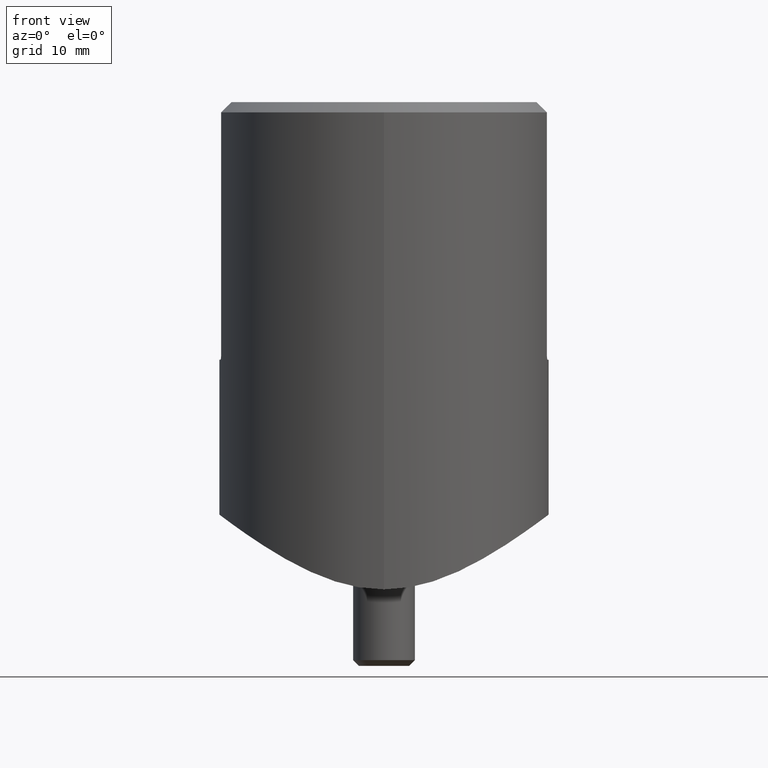
[diagram: clean part render]
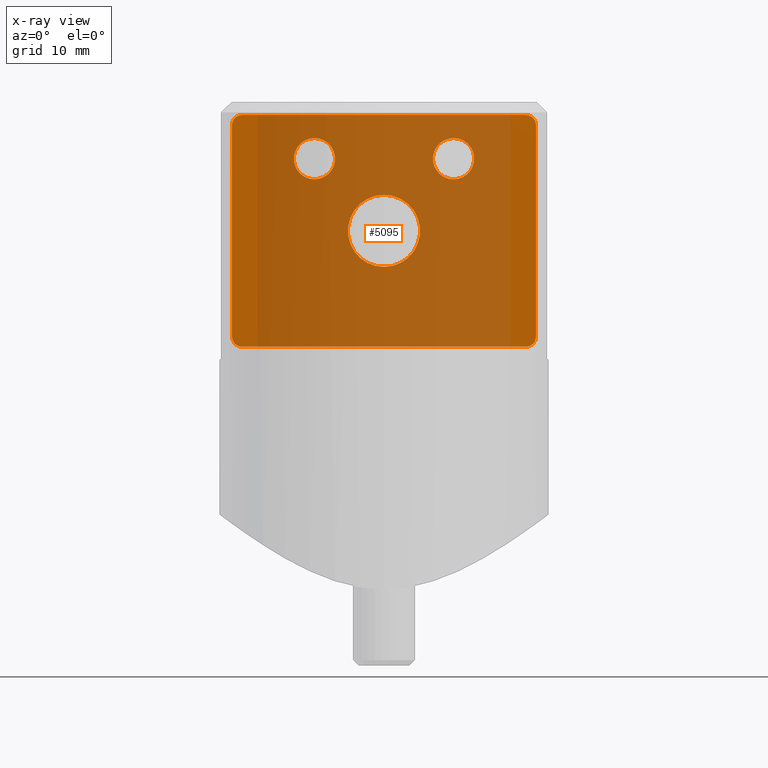
[diagram: x-ray — body ghosted, one internal face saturated and labeled with its STEP entity id]
A machine part, front view, then the same camera in x-ray: the body is ghosted and one INTERNAL B-rep face — a face not visible from any outside direction — is saturated and labeled: STEP entity #5095.
In plain terms, the highlighted planar face has unit normal (0, 1, 0).
Its self-contained STEP definition (entity closure, byte-faithful):
#307 = AXIS2_PLACEMENT_3D ( 'NONE', #15030, #10903, #17843 ) ;
#454 = ORIENTED_EDGE ( 'NONE', *, *, #17945, .T. ) ;
#544 = EDGE_CURVE ( 'NONE', #16011, #16011, #11979, .T. ) ;
#647 = CARTESIAN_POINT ( 'NONE',  ( -14.75000000000000355, 1.000000000000000000, -11.24999999999999112 ) ) ;
#700 = LINE ( 'NONE', #13476, #10276 ) ;
#702 = CARTESIAN_POINT ( 'NONE',  ( -14.75000000000000000, 1.000000000000000000, 10.24999999999999822 ) ) ;
#909 = DIRECTION ( 'NONE',  ( 0.000000000000000000, 0.000000000000000000, -1.000000000000000000 ) ) ;
#919 = CIRCLE ( 'NONE', #10800, 1.000000000000000888 ) ;
#971 = CIRCLE ( 'NONE', #16601, 0.9999999999999991118 ) ;
#1204 = ORIENTED_EDGE ( 'NONE', *, *, #3835, .T. ) ;
#1389 = CIRCLE ( 'NONE', #9608, 2.000000000000000000 ) ;
#1562 = EDGE_CURVE ( 'NONE', #3215, #16332, #9225, .T. ) ;
#1596 = CARTESIAN_POINT ( 'NONE',  ( -13.75000000000000178, 1.000000000000000000, -10.24999999999999289 ) ) ;
#1599 = CARTESIAN_POINT ( 'NONE',  ( -13.74999999999999822, 1.000000000000000000, 11.24999999999999822 ) ) ;
#1671 = CARTESIAN_POINT ( 'NONE',  ( 6.750000000000002665, 1.000000000000000000, 6.999999999999995559 ) ) ;
#2731 = AXIS2_PLACEMENT_3D ( 'NONE', #2752, #10992, #5422 ) ;
#2752 = CARTESIAN_POINT ( 'NONE',  ( 0.000000000000000000, 1.000000000000000000, 0.000000000000000000 ) ) ;
#2813 = ORIENTED_EDGE ( 'NONE', *, *, #6940, .T. ) ;
#3215 = VERTEX_POINT ( 'NONE', #13511 ) ;
#3297 = CIRCLE ( 'NONE', #2731, 3.499999999999999556 ) ;
#3340 = LINE ( 'NONE', #6179, #10314 ) ;
#3449 = ORIENTED_EDGE ( 'NONE', *, *, #544, .F. ) ;
#3835 = EDGE_CURVE ( 'NONE', #8982, #3215, #971, .T. ) ;
#3906 = EDGE_LOOP ( 'NONE', ( #16092 ) ) ;
#4087 = EDGE_LOOP ( 'NONE', ( #454, #1204, #6555, #11449, #2813, #14783, #6357, #7365 ) ) ;
#4187 = FACE_BOUND ( 'NONE', #14386, .T. ) ;
#4669 = VECTOR ( 'NONE', #6291, 1000.000000000000000 ) ;
#4782 = EDGE_LOOP ( 'NONE', ( #14961 ) ) ;
#4829 = EDGE_CURVE ( 'NONE', #9028, #9028, #1389, .T. ) ;
#5085 = DIRECTION ( 'NONE',  ( -0.000000000000000000, 1.000000000000000000, 0.000000000000000000 ) ) ;
#5095 = ADVANCED_FACE ( 'NONE', ( #14450, #7916, #4187, #6598 ), #13588, .F. ) ;
#5106 = LINE ( 'NONE', #647, #4669 ) ;
#5326 = DIRECTION ( 'NONE',  ( -0.000000000000000000, 1.000000000000000000, 0.000000000000000000 ) ) ;
#5336 = EDGE_CURVE ( 'NONE', #16332, #9102, #13348, .T. ) ;
#5422 = DIRECTION ( 'NONE',  ( 0.000000000000000000, 0.000000000000000000, 1.000000000000000000 ) ) ;
#6179 = CARTESIAN_POINT ( 'NONE',  ( 14.75000000000000000, 1.000000000000000000, 11.24999999999999822 ) ) ;
#6291 = DIRECTION ( 'NONE',  ( -1.000000000000000000, -0.000000000000000000, 3.528251137579946599E-16 ) ) ;
#6301 = EDGE_CURVE ( 'NONE', #16553, #7392, #919, .T. ) ;
#6357 = ORIENTED_EDGE ( 'NONE', *, *, #12874, .T. ) ;
#6515 = EDGE_CURVE ( 'NONE', #12304, #12304, #3297, .T. ) ;
#6555 = ORIENTED_EDGE ( 'NONE', *, *, #1562, .T. ) ;
#6598 = FACE_BOUND ( 'NONE', #4782, .T. ) ;
#6940 = EDGE_CURVE ( 'NONE', #9102, #16553, #700, .T. ) ;
#7132 = DIRECTION ( 'NONE',  ( 0.000000000000000000, 0.000000000000000000, -1.000000000000000000 ) ) ;
#7168 = CARTESIAN_POINT ( 'NONE',  ( 13.74999999999999822, 1.000000000000000000, 10.24999999999999822 ) ) ;
#7365 = ORIENTED_EDGE ( 'NONE', *, *, #14461, .T. ) ;
#7392 = VERTEX_POINT ( 'NONE', #13153 ) ;
#7400 = AXIS2_PLACEMENT_3D ( 'NONE', #11112, #8290, #16817 ) ;
#7490 = DIRECTION ( 'NONE',  ( 1.541976423090496126E-16, -0.000000000000000000, 1.000000000000000000 ) ) ;
#7916 = FACE_BOUND ( 'NONE', #3906, .T. ) ;
#8290 = DIRECTION ( 'NONE',  ( -0.000000000000000000, 1.000000000000000000, 0.000000000000000000 ) ) ;
#8496 = AXIS2_PLACEMENT_3D ( 'NONE', #13685, #5326, #17876 ) ;
#8518 = DIRECTION ( 'NONE',  ( -0.000000000000000000, 1.000000000000000000, 0.000000000000000000 ) ) ;
#8776 = DIRECTION ( 'NONE',  ( 0.000000000000000000, 0.000000000000000000, -1.000000000000000000 ) ) ;
#8915 = DIRECTION ( 'NONE',  ( -1.541976423090495387E-16, 0.000000000000000000, -1.000000000000000000 ) ) ;
#8982 = VERTEX_POINT ( 'NONE', #15342 ) ;
#9028 = VERTEX_POINT ( 'NONE', #13534 ) ;
#9083 = DIRECTION ( 'NONE',  ( 1.000000000000000000, 0.000000000000000000, 0.000000000000000000 ) ) ;
#9102 = VERTEX_POINT ( 'NONE', #1599 ) ;
#9225 = LINE ( 'NONE', #12849, #12718 ) ;
#9314 = CARTESIAN_POINT ( 'NONE',  ( -6.749999999999997335, 1.000000000000000000, 4.999999999999997335 ) ) ;
#9479 = CARTESIAN_POINT ( 'NONE',  ( 13.74999999999999467, 1.000000000000000000, -11.25000000000000178 ) ) ;
#9608 = AXIS2_PLACEMENT_3D ( 'NONE', #1671, #10187, #8776 ) ;
#10187 = DIRECTION ( 'NONE',  ( -0.000000000000000000, 1.000000000000000000, 0.000000000000000000 ) ) ;
#10276 = VECTOR ( 'NONE', #9083, 1000.000000000000000 ) ;
#10314 = VECTOR ( 'NONE', #8915, 1000.000000000000000 ) ;
#10800 = AXIS2_PLACEMENT_3D ( 'NONE', #7168, #12743, #12500 ) ;
#10834 = VERTEX_POINT ( 'NONE', #14562 ) ;
#10903 = DIRECTION ( 'NONE',  ( 0.000000000000000000, -1.000000000000000000, 0.000000000000000000 ) ) ;
#10992 = DIRECTION ( 'NONE',  ( 0.000000000000000000, 1.000000000000000000, 0.000000000000000000 ) ) ;
#11112 = CARTESIAN_POINT ( 'NONE',  ( -6.749999999999997335, 1.000000000000000000, 6.999999999999997335 ) ) ;
#11259 = AXIS2_PLACEMENT_3D ( 'NONE', #14664, #5085, #909 ) ;
#11413 = CIRCLE ( 'NONE', #8496, 1.000000000000000888 ) ;
#11449 = ORIENTED_EDGE ( 'NONE', *, *, #5336, .T. ) ;
#11979 = CIRCLE ( 'NONE', #7400, 2.000000000000000000 ) ;
#12135 = CARTESIAN_POINT ( 'NONE',  ( 0.000000000000000000, 1.000000000000000000, 3.499999999999999556 ) ) ;
#12304 = VERTEX_POINT ( 'NONE', #12135 ) ;
#12500 = DIRECTION ( 'NONE',  ( 0.000000000000000000, 0.000000000000000000, -1.000000000000000000 ) ) ;
#12718 = VECTOR ( 'NONE', #7490, 1000.000000000000000 ) ;
#12743 = DIRECTION ( 'NONE',  ( -0.000000000000000000, 1.000000000000000000, 0.000000000000000000 ) ) ;
#12849 = CARTESIAN_POINT ( 'NONE',  ( -14.75000000000000000, 1.000000000000000000, 11.24999999999999822 ) ) ;
#12874 = EDGE_CURVE ( 'NONE', #7392, #10834, #3340, .T. ) ;
#13153 = CARTESIAN_POINT ( 'NONE',  ( 14.75000000000000000, 1.000000000000000000, 10.24999999999999822 ) ) ;
#13348 = CIRCLE ( 'NONE', #11259, 1.000000000000000888 ) ;
#13457 = VERTEX_POINT ( 'NONE', #9479 ) ;
#13476 = CARTESIAN_POINT ( 'NONE',  ( -14.75000000000000000, 1.000000000000000000, 11.24999999999999822 ) ) ;
#13511 = CARTESIAN_POINT ( 'NONE',  ( -14.75000000000000355, 1.000000000000000000, -10.24999999999998579 ) ) ;
#13534 = CARTESIAN_POINT ( 'NONE',  ( 6.750000000000002665, 1.000000000000000000, 4.999999999999995559 ) ) ;
#13588 = PLANE ( 'NONE',  #307 ) ;
#13685 = CARTESIAN_POINT ( 'NONE',  ( 13.74999999999999467, 1.000000000000000000, -10.25000000000000178 ) ) ;
#14386 = EDGE_LOOP ( 'NONE', ( #3449 ) ) ;
#14450 = FACE_OUTER_BOUND ( 'NONE', #4087, .T. ) ;
#14461 = EDGE_CURVE ( 'NONE', #10834, #13457, #11413, .T. ) ;
#14562 = CARTESIAN_POINT ( 'NONE',  ( 14.74999999999999645, 1.000000000000000000, -10.24999999999999289 ) ) ;
#14664 = CARTESIAN_POINT ( 'NONE',  ( -13.74999999999999822, 1.000000000000000000, 10.24999999999999822 ) ) ;
#14783 = ORIENTED_EDGE ( 'NONE', *, *, #6301, .T. ) ;
#14961 = ORIENTED_EDGE ( 'NONE', *, *, #4829, .F. ) ;
#15030 = CARTESIAN_POINT ( 'NONE',  ( 0.000000000000000000, 1.000000000000000000, 0.000000000000000000 ) ) ;
#15201 = CARTESIAN_POINT ( 'NONE',  ( 13.74999999999999822, 1.000000000000000000, 11.24999999999999822 ) ) ;
#15342 = CARTESIAN_POINT ( 'NONE',  ( -13.75000000000000178, 1.000000000000000000, -11.24999999999999112 ) ) ;
#16011 = VERTEX_POINT ( 'NONE', #9314 ) ;
#16092 = ORIENTED_EDGE ( 'NONE', *, *, #6515, .F. ) ;
#16332 = VERTEX_POINT ( 'NONE', #702 ) ;
#16553 = VERTEX_POINT ( 'NONE', #15201 ) ;
#16601 = AXIS2_PLACEMENT_3D ( 'NONE', #1596, #8518, #7132 ) ;
#16817 = DIRECTION ( 'NONE',  ( 0.000000000000000000, 0.000000000000000000, -1.000000000000000000 ) ) ;
#17843 = DIRECTION ( 'NONE',  ( 0.000000000000000000, 0.000000000000000000, -1.000000000000000000 ) ) ;
#17876 = DIRECTION ( 'NONE',  ( -1.734723475976805517E-15, 0.000000000000000000, -1.000000000000000000 ) ) ;
#17945 = EDGE_CURVE ( 'NONE', #13457, #8982, #5106, .T. ) ;